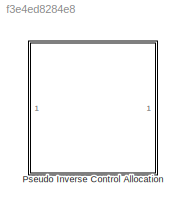
MODEL slx_f3e4ed8284e8
KIND library
CONFIG AbsTol = auto
CONFIG EnableMultiTasking = off
CONFIG FixedStep = auto
CONFIG MaxStep = auto
CONFIG MinStep = auto
CONFIG RelTol = 1e-3
CONFIG SampleTimeConstraint = Unconstrained
CONFIG SolverName = VariableStepAuto
CONFIG StartTime = 0.0
CONFIG StopTime = 10.0
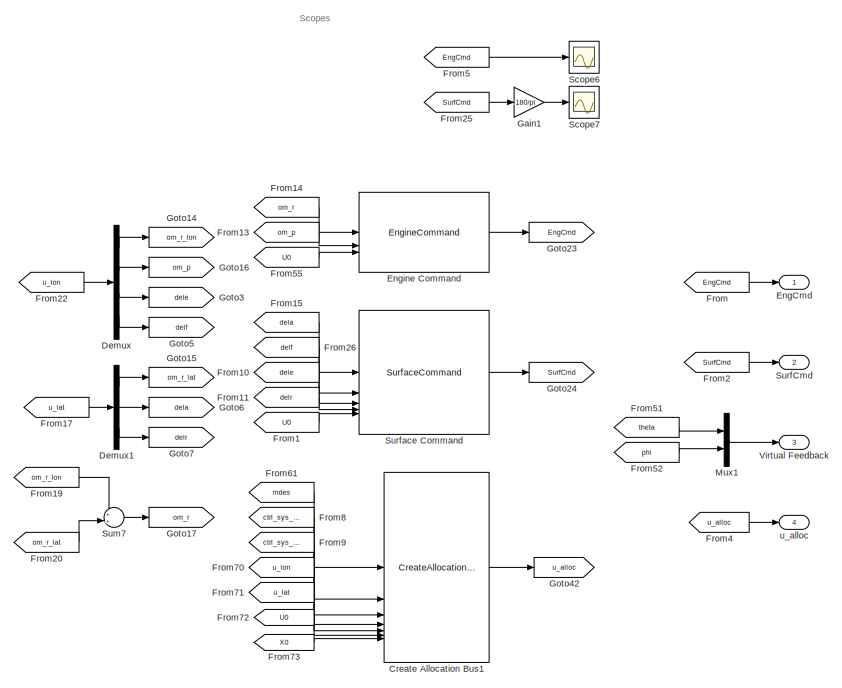
[diagram: Pseudo Inverse Control Allocation - part 1/2, right side, full height]
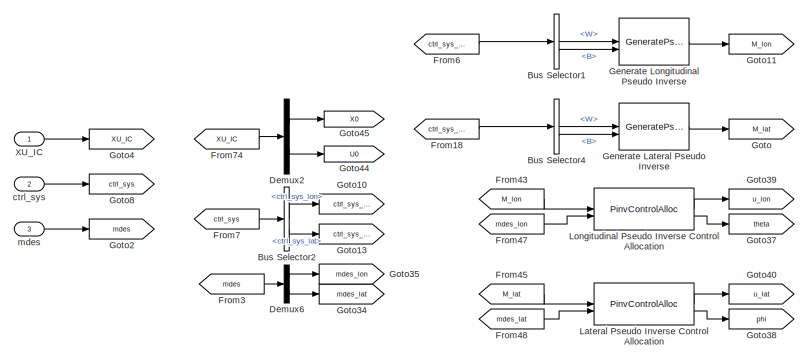
[diagram: Pseudo Inverse Control Allocation - part 2/2, middle left region]
BLOCK [SubSystem] Pseudo Inverse Control Allocation
BLOCK [BusSelector] Pseudo Inverse Control Allocation/Bus Selector1
  OutputSignals = W,B
BLOCK [BusSelector] Pseudo Inverse Control Allocation/Bus Selector2
  OutputSignals = ctrl_sys_lon,ctrl_sys_lat
BLOCK [BusSelector] Pseudo Inverse Control Allocation/Bus Selector4
  OutputSignals = W,B
BLOCK [Reference] Pseudo Inverse Control Allocation/Create Allocation Bus1  REF=ComponentsLib/CreateAllocationBus
  SourceBlock = ComponentsLib/CreateAllocationBus
  SourceProductName = GUAM Controller Blockset
  SourceType = SubSystem
BLOCK [Demux] Pseudo Inverse Control Allocation/Demux
  Outputs = [8 1 1 1]
BLOCK [Demux] Pseudo Inverse Control Allocation/Demux1
  Outputs = [8 1 1]
BLOCK [Demux] Pseudo Inverse Control Allocation/Demux2
  Outputs = [12 13]
BLOCK [Demux] Pseudo Inverse Control Allocation/Demux6
  Outputs = [3 3]
BLOCK [Outport] Pseudo Inverse Control Allocation/EngCmd
BLOCK [Reference] Pseudo Inverse Control Allocation/Engine Command  REF=ComponentsLib/EngineCommand
  SourceBlock = ComponentsLib/EngineCommand
  SourceProductName = GUAM Controller Blockset
  SourceType = SubSystem
BLOCK [From] Pseudo Inverse Control Allocation/From
  GotoTag = EngCmd
BLOCK [From] Pseudo Inverse Control Allocation/From1
  GotoTag = U0
BLOCK [From] Pseudo Inverse Control Allocation/From10
  GotoTag = dele
BLOCK [From] Pseudo Inverse Control Allocation/From11
  GotoTag = delr
BLOCK [From] Pseudo Inverse Control Allocation/From13
  GotoTag = om_p
BLOCK [From] Pseudo Inverse Control Allocation/From14
  GotoTag = om_r
BLOCK [From] Pseudo Inverse Control Allocation/From15
  GotoTag = dela
BLOCK [From] Pseudo Inverse Control Allocation/From17
  GotoTag = u_lat
BLOCK [From] Pseudo Inverse Control Allocation/From18
  GotoTag = ctrl_sys_lat
BLOCK [From] Pseudo Inverse Control Allocation/From19
  GotoTag = om_r_lon
BLOCK [From] Pseudo Inverse Control Allocation/From2
  GotoTag = SurfCmd
BLOCK [From] Pseudo Inverse Control Allocation/From20
  GotoTag = om_r_lat
BLOCK [From] Pseudo Inverse Control Allocation/From22
  GotoTag = u_lon
BLOCK [From] Pseudo Inverse Control Allocation/From25
  GotoTag = SurfCmd
BLOCK [From] Pseudo Inverse Control Allocation/From26
  GotoTag = delf
BLOCK [From] Pseudo Inverse Control Allocation/From3
  GotoTag = mdes
BLOCK [From] Pseudo Inverse Control Allocation/From4
  GotoTag = u_alloc
BLOCK [From] Pseudo Inverse Control Allocation/From43
  GotoTag = M_lon
BLOCK [From] Pseudo Inverse Control Allocation/From45
  GotoTag = M_lat
BLOCK [From] Pseudo Inverse Control Allocation/From47
  GotoTag = mdes_lon
BLOCK [From] Pseudo Inverse Control Allocation/From48
  GotoTag = mdes_lat
BLOCK [From] Pseudo Inverse Control Allocation/From5
  GotoTag = EngCmd
BLOCK [From] Pseudo Inverse Control Allocation/From51
  GotoTag = theta
BLOCK [From] Pseudo Inverse Control Allocation/From52
  GotoTag = phi
BLOCK [From] Pseudo Inverse Control Allocation/From55
  GotoTag = U0
BLOCK [From] Pseudo Inverse Control Allocation/From6
  GotoTag = ctrl_sys_lon
BLOCK [From] Pseudo Inverse Control Allocation/From61
  GotoTag = mdes
BLOCK [From] Pseudo Inverse Control Allocation/From7
  GotoTag = ctrl_sys
BLOCK [From] Pseudo Inverse Control Allocation/From70
  GotoTag = u_lon
BLOCK [From] Pseudo Inverse Control Allocation/From71
  GotoTag = u_lat
BLOCK [From] Pseudo Inverse Control Allocation/From72
  GotoTag = U0
BLOCK [From] Pseudo Inverse Control Allocation/From73
  GotoTag = X0
BLOCK [From] Pseudo Inverse Control Allocation/From74
  GotoTag = XU_IC
BLOCK [From] Pseudo Inverse Control Allocation/From8
  GotoTag = ctrl_sys_lon
BLOCK [From] Pseudo Inverse Control Allocation/From9
  GotoTag = ctrl_sys_lat
BLOCK [Gain] Pseudo Inverse Control Allocation/Gain1
  Gain = 180/pi
BLOCK [Reference] Pseudo Inverse Control Allocation/Generate Lateral Pseudo Inverse  REF=ComponentsLib/GeneratePseudoInverse
  SourceBlock = ComponentsLib/GeneratePseudoInverse
  SourceProductName = GUAM Controller Blockset
  SourceType = SubSystem
BLOCK [Reference] Pseudo Inverse Control Allocation/Generate Longitudinal Pseudo Inverse  REF=ComponentsLib/GeneratePseudoInverse
  SourceBlock = ComponentsLib/GeneratePseudoInverse
  SourceProductName = GUAM Controller Blockset
  SourceType = SubSystem
BLOCK [Goto] Pseudo Inverse Control Allocation/Goto
  GotoTag = M_lat
BLOCK [Goto] Pseudo Inverse Control Allocation/Goto10
  GotoTag = ctrl_sys_lon
BLOCK [Goto] Pseudo Inverse Control Allocation/Goto11
  GotoTag = M_lon
BLOCK [Goto] Pseudo Inverse Control Allocation/Goto13
  GotoTag = ctrl_sys_lat
BLOCK [Goto] Pseudo Inverse Control Allocation/Goto14
  GotoTag = om_r_lon
BLOCK [Goto] Pseudo Inverse Control Allocation/Goto15
  GotoTag = om_r_lat
BLOCK [Goto] Pseudo Inverse Control Allocation/Goto16
  GotoTag = om_p
BLOCK [Goto] Pseudo Inverse Control Allocation/Goto17
  GotoTag = om_r
BLOCK [Goto] Pseudo Inverse Control Allocation/Goto2
  GotoTag = mdes
BLOCK [Goto] Pseudo Inverse Control Allocation/Goto23
  GotoTag = EngCmd
BLOCK [Goto] Pseudo Inverse Control Allocation/Goto24
  GotoTag = SurfCmd
BLOCK [Goto] Pseudo Inverse Control Allocation/Goto3
  GotoTag = dele
BLOCK [Goto] Pseudo Inverse Control Allocation/Goto34
  GotoTag = mdes_lat
BLOCK [Goto] Pseudo Inverse Control Allocation/Goto35
  GotoTag = mdes_lon
BLOCK [Goto] Pseudo Inverse Control Allocation/Goto37
  GotoTag = theta
BLOCK [Goto] Pseudo Inverse Control Allocation/Goto38
  GotoTag = phi
BLOCK [Goto] Pseudo Inverse Control Allocation/Goto39
  GotoTag = u_lon
BLOCK [Goto] Pseudo Inverse Control Allocation/Goto4
  GotoTag = XU_IC
BLOCK [Goto] Pseudo Inverse Control Allocation/Goto40
  GotoTag = u_lat
BLOCK [Goto] Pseudo Inverse Control Allocation/Goto42
  GotoTag = u_alloc
BLOCK [Goto] Pseudo Inverse Control Allocation/Goto44
  GotoTag = U0
BLOCK [Goto] Pseudo Inverse Control Allocation/Goto45
  GotoTag = X0
BLOCK [Goto] Pseudo Inverse Control Allocation/Goto5
  GotoTag = delf
BLOCK [Goto] Pseudo Inverse Control Allocation/Goto6
  GotoTag = dela
BLOCK [Goto] Pseudo Inverse Control Allocation/Goto7
  GotoTag = delr
BLOCK [Goto] Pseudo Inverse Control Allocation/Goto8
  GotoTag = ctrl_sys
BLOCK [Reference] Pseudo Inverse Control Allocation/Lateral Pseudo Inverse Control Allocation  REF=ComponentsLib/PinvControlAlloc
  SourceBlock = ComponentsLib/PinvControlAlloc
  SourceProductName = GUAM Controller Blockset
  SourceType = SubSystem
BLOCK [Reference] Pseudo Inverse Control Allocation/Longitudinal Pseudo Inverse Control Allocation  REF=ComponentsLib/PinvControlAlloc
  SourceBlock = ComponentsLib/PinvControlAlloc
  SourceProductName = GUAM Controller Blockset
  SourceType = SubSystem
BLOCK [Mux] Pseudo Inverse Control Allocation/Mux1
  DisplayOption = bar
  Inputs = 2
BLOCK [Scope] Pseudo Inverse Control Allocation/Scope6
  Floating = off
  NumInputPorts = 1
  ScopeSpecificationString = Simulink.scopes.TimeScopeBlockCfg('CurrentConfiguration', extmgr.ConfigurationSet(extmgr.Configuration('Core','General UI',true),extmgr.Configuration('Core','Source UI',true),extmgr.Configuration('Sources','WiredSimulink',true,'DataLoggingVariableName','ScopeData11'),extmgr.Configuration('Visuals','Time Domain',true,'SerializedDisplays',{struct('MinYLimReal','-12.30094','MaxYLimReal','110.70985','...<+1448ch>
BLOCK [Scope] Pseudo Inverse Control Allocation/Scope7
  Floating = off
  NumInputPorts = 1
  ScopeSpecificationString = Simulink.scopes.TimeScopeBlockCfg('CurrentConfiguration', extmgr.ConfigurationSet(extmgr.Configuration('Core','General UI',true),extmgr.Configuration('Core','Source UI',true),extmgr.Configuration('Sources','WiredSimulink',true,'DataLoggingVariableName','ScopeData12'),extmgr.Configuration('Visuals','Time Domain',true,'SerializedDisplays',{struct('MinYLimReal','-16.08366','MaxYLimReal','2.8531','YLa...<+1489ch>
BLOCK [Sum] Pseudo Inverse Control Allocation/Sum7
BLOCK [Outport] Pseudo Inverse Control Allocation/SurfCmd
  Port = 2
BLOCK [Reference] Pseudo Inverse Control Allocation/Surface Command  REF=ComponentsLib/SurfaceCommand
  SourceBlock = ComponentsLib/SurfaceCommand
  SourceProductName = GUAM Controller Blockset
  SourceType = SubSystem
BLOCK [Outport] Pseudo Inverse Control Allocation/Virtual Feedback
  Port = 3
BLOCK [Inport] Pseudo Inverse Control Allocation/XU_IC
BLOCK [Inport] Pseudo Inverse Control Allocation/ctrl_sys
  Port = 2
BLOCK [Inport] Pseudo Inverse Control Allocation/mdes
  Port = 3
BLOCK [Outport] Pseudo Inverse Control Allocation/u_alloc
  Port = 4
ANNOTATION Pseudo Inverse Control Allocation: Scopes
LINE Pseudo Inverse Control Allocation/Bus Selector1:1 -> Pseudo Inverse Control Allocation/Generate Longitudinal Pseudo Inverse:1
LINE Pseudo Inverse Control Allocation/Bus Selector1:2 -> Pseudo Inverse Control Allocation/Generate Longitudinal Pseudo Inverse:2
LINE Pseudo Inverse Control Allocation/Bus Selector2:1 -> Pseudo Inverse Control Allocation/Goto10:1
LINE Pseudo Inverse Control Allocation/Bus Selector2:2 -> Pseudo Inverse Control Allocation/Goto13:1
LINE Pseudo Inverse Control Allocation/Bus Selector4:1 -> Pseudo Inverse Control Allocation/Generate Lateral Pseudo Inverse:1
LINE Pseudo Inverse Control Allocation/Bus Selector4:2 -> Pseudo Inverse Control Allocation/Generate Lateral Pseudo Inverse:2
LINE Pseudo Inverse Control Allocation/Create Allocation Bus1:1 -> Pseudo Inverse Control Allocation/Goto42:1
LINE Pseudo Inverse Control Allocation/Demux1:1 -> Pseudo Inverse Control Allocation/Goto15:1
LINE Pseudo Inverse Control Allocation/Demux1:2 -> Pseudo Inverse Control Allocation/Goto6:1
LINE Pseudo Inverse Control Allocation/Demux1:3 -> Pseudo Inverse Control Allocation/Goto7:1
LINE Pseudo Inverse Control Allocation/Demux2:1 -> Pseudo Inverse Control Allocation/Goto45:1
LINE Pseudo Inverse Control Allocation/Demux2:2 -> Pseudo Inverse Control Allocation/Goto44:1
LINE Pseudo Inverse Control Allocation/Demux6:1 -> Pseudo Inverse Control Allocation/Goto35:1
LINE Pseudo Inverse Control Allocation/Demux6:2 -> Pseudo Inverse Control Allocation/Goto34:1
LINE Pseudo Inverse Control Allocation/Demux:1 -> Pseudo Inverse Control Allocation/Goto14:1
LINE Pseudo Inverse Control Allocation/Demux:2 -> Pseudo Inverse Control Allocation/Goto16:1
LINE Pseudo Inverse Control Allocation/Demux:3 -> Pseudo Inverse Control Allocation/Goto3:1
LINE Pseudo Inverse Control Allocation/Demux:4 -> Pseudo Inverse Control Allocation/Goto5:1
LINE Pseudo Inverse Control Allocation/Engine Command:1 -> Pseudo Inverse Control Allocation/Goto23:1
LINE Pseudo Inverse Control Allocation/From10:1 -> Pseudo Inverse Control Allocation/Surface Command:3
LINE Pseudo Inverse Control Allocation/From11:1 -> Pseudo Inverse Control Allocation/Surface Command:4
LINE Pseudo Inverse Control Allocation/From13:1 -> Pseudo Inverse Control Allocation/Engine Command:2
LINE Pseudo Inverse Control Allocation/From14:1 -> Pseudo Inverse Control Allocation/Engine Command:1
LINE Pseudo Inverse Control Allocation/From15:1 -> Pseudo Inverse Control Allocation/Surface Command:1
LINE Pseudo Inverse Control Allocation/From17:1 -> Pseudo Inverse Control Allocation/Demux1:1
LINE Pseudo Inverse Control Allocation/From18:1 -> Pseudo Inverse Control Allocation/Bus Selector4:1
LINE Pseudo Inverse Control Allocation/From19:1 -> Pseudo Inverse Control Allocation/Sum7:1
LINE Pseudo Inverse Control Allocation/From1:1 -> Pseudo Inverse Control Allocation/Surface Command:5
LINE Pseudo Inverse Control Allocation/From20:1 -> Pseudo Inverse Control Allocation/Sum7:2
LINE Pseudo Inverse Control Allocation/From22:1 -> Pseudo Inverse Control Allocation/Demux:1
LINE Pseudo Inverse Control Allocation/From25:1 -> Pseudo Inverse Control Allocation/Gain1:1
LINE Pseudo Inverse Control Allocation/From26:1 -> Pseudo Inverse Control Allocation/Surface Command:2
LINE Pseudo Inverse Control Allocation/From2:1 -> Pseudo Inverse Control Allocation/SurfCmd:1
LINE Pseudo Inverse Control Allocation/From3:1 -> Pseudo Inverse Control Allocation/Demux6:1
LINE Pseudo Inverse Control Allocation/From43:1 -> Pseudo Inverse Control Allocation/Longitudinal Pseudo Inverse Control Allocation:1
LINE Pseudo Inverse Control Allocation/From45:1 -> Pseudo Inverse Control Allocation/Lateral Pseudo Inverse Control Allocation:1
LINE Pseudo Inverse Control Allocation/From47:1 -> Pseudo Inverse Control Allocation/Longitudinal Pseudo Inverse Control Allocation:2
LINE Pseudo Inverse Control Allocation/From48:1 -> Pseudo Inverse Control Allocation/Lateral Pseudo Inverse Control Allocation:2
LINE Pseudo Inverse Control Allocation/From4:1 -> Pseudo Inverse Control Allocation/u_alloc:1
LINE Pseudo Inverse Control Allocation/From51:1 -> Pseudo Inverse Control Allocation/Mux1:1
LINE Pseudo Inverse Control Allocation/From52:1 -> Pseudo Inverse Control Allocation/Mux1:2
LINE Pseudo Inverse Control Allocation/From55:1 -> Pseudo Inverse Control Allocation/Engine Command:3
LINE Pseudo Inverse Control Allocation/From5:1 -> Pseudo Inverse Control Allocation/Scope6:1
LINE Pseudo Inverse Control Allocation/From61:1 -> Pseudo Inverse Control Allocation/Create Allocation Bus1:1
LINE Pseudo Inverse Control Allocation/From6:1 -> Pseudo Inverse Control Allocation/Bus Selector1:1
LINE Pseudo Inverse Control Allocation/From70:1 -> Pseudo Inverse Control Allocation/Create Allocation Bus1:4
LINE Pseudo Inverse Control Allocation/From71:1 -> Pseudo Inverse Control Allocation/Create Allocation Bus1:5
LINE Pseudo Inverse Control Allocation/From72:1 -> Pseudo Inverse Control Allocation/Create Allocation Bus1:6
LINE Pseudo Inverse Control Allocation/From73:1 -> Pseudo Inverse Control Allocation/Create Allocation Bus1:7
LINE Pseudo Inverse Control Allocation/From74:1 -> Pseudo Inverse Control Allocation/Demux2:1
LINE Pseudo Inverse Control Allocation/From7:1 -> Pseudo Inverse Control Allocation/Bus Selector2:1
LINE Pseudo Inverse Control Allocation/From8:1 -> Pseudo Inverse Control Allocation/Create Allocation Bus1:2
LINE Pseudo Inverse Control Allocation/From9:1 -> Pseudo Inverse Control Allocation/Create Allocation Bus1:3
LINE Pseudo Inverse Control Allocation/From:1 -> Pseudo Inverse Control Allocation/EngCmd:1
LINE Pseudo Inverse Control Allocation/Gain1:1 -> Pseudo Inverse Control Allocation/Scope7:1
LINE Pseudo Inverse Control Allocation/Generate Lateral Pseudo Inverse:1 -> Pseudo Inverse Control Allocation/Goto:1
LINE Pseudo Inverse Control Allocation/Generate Longitudinal Pseudo Inverse:1 -> Pseudo Inverse Control Allocation/Goto11:1
LINE Pseudo Inverse Control Allocation/Lateral Pseudo Inverse Control Allocation:1 -> Pseudo Inverse Control Allocation/Goto40:1
LINE Pseudo Inverse Control Allocation/Lateral Pseudo Inverse Control Allocation:2 -> Pseudo Inverse Control Allocation/Goto38:1
LINE Pseudo Inverse Control Allocation/Longitudinal Pseudo Inverse Control Allocation:1 -> Pseudo Inverse Control Allocation/Goto39:1
LINE Pseudo Inverse Control Allocation/Longitudinal Pseudo Inverse Control Allocation:2 -> Pseudo Inverse Control Allocation/Goto37:1
LINE Pseudo Inverse Control Allocation/Mux1:1 -> Pseudo Inverse Control Allocation/Virtual Feedback:1
LINE Pseudo Inverse Control Allocation/Sum7:1 -> Pseudo Inverse Control Allocation/Goto17:1
LINE Pseudo Inverse Control Allocation/Surface Command:1 -> Pseudo Inverse Control Allocation/Goto24:1
LINE Pseudo Inverse Control Allocation/XU_IC:1 -> Pseudo Inverse Control Allocation/Goto4:1
LINE Pseudo Inverse Control Allocation/ctrl_sys:1 -> Pseudo Inverse Control Allocation/Goto8:1
LINE Pseudo Inverse Control Allocation/mdes:1 -> Pseudo Inverse Control Allocation/Goto2:1
